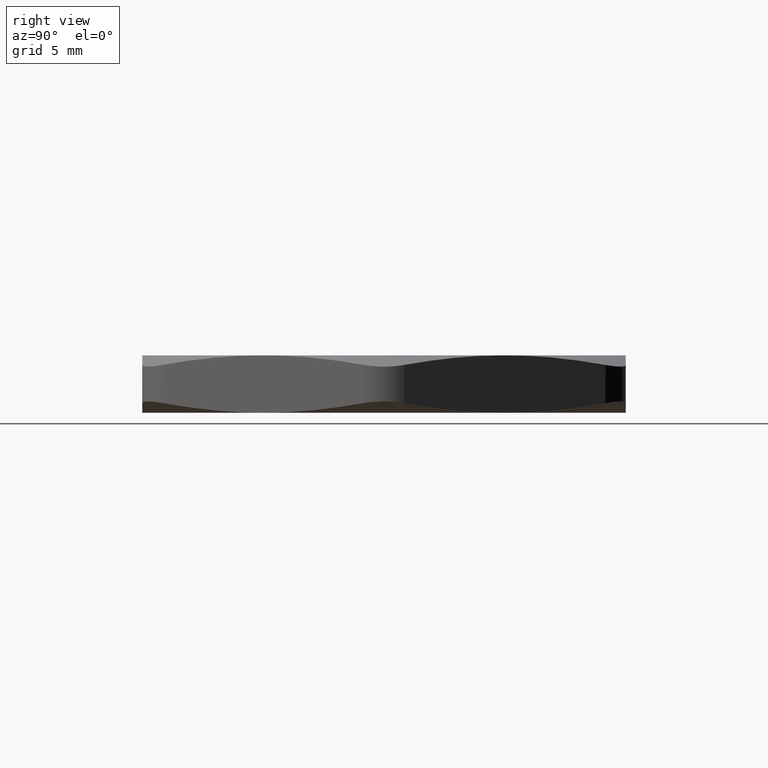
[diagram: clean part render]
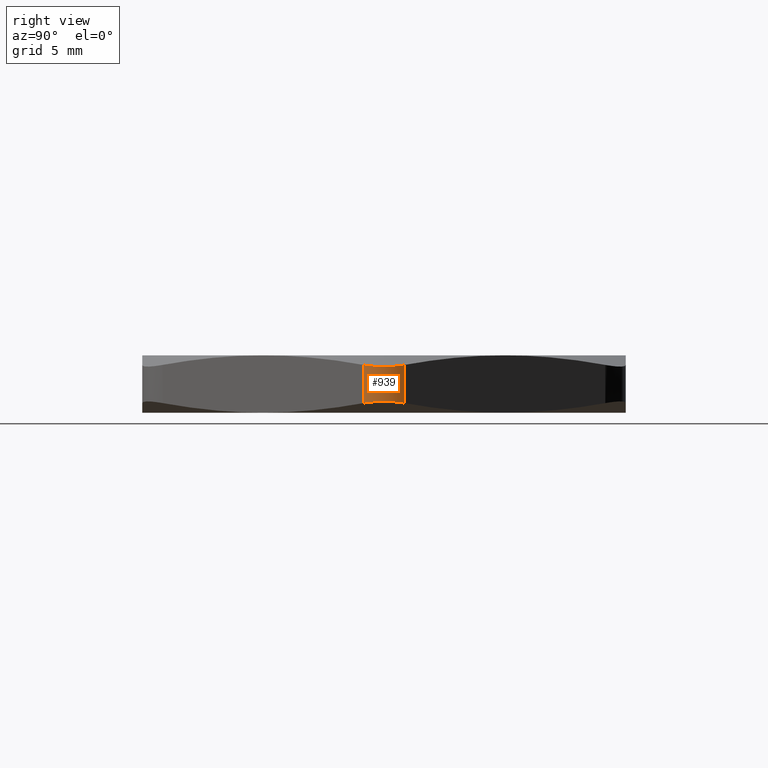
[diagram: same view with one face highlighted and labeled with its STEP entity id]
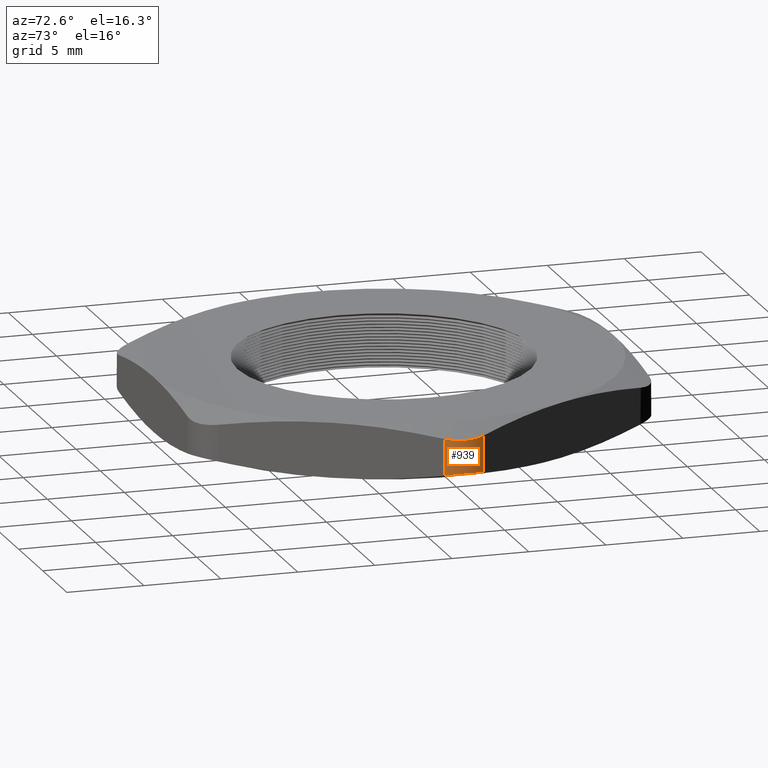
[diagram: same view with one face highlighted and labeled with its STEP entity id]
A machine part, right view. The second image highlights one B-rep face of the part: STEP entity #939.
A second angle (auxiliary view) of the same face is appended — the face is thin or edge-on in the first view.
In plain terms, the highlighted cylindrical surface (partial cylindrical patch) has radius 2.54 mm, axis along (0, 0, -1).
Its self-contained STEP definition (entity closure, byte-faithful):
#753 = EDGE_CURVE ( 'NONE', #762, #830, #2006, .T. ) ;
#762 = VERTEX_POINT ( 'NONE', #2079 ) ;
#804 = EDGE_CURVE ( 'NONE', #805, #815, #2156, .T. ) ;
#805 = VERTEX_POINT ( 'NONE', #2155 ) ;
#815 = VERTEX_POINT ( 'NONE', #2175 ) ;
#827 = VERTEX_POINT ( 'NONE', #2166 ) ;
#830 = VERTEX_POINT ( 'NONE', #2210 ) ;
#910 = EDGE_CURVE ( 'NONE', #805, #827, #2435, .T. ) ;
#916 = ORIENTED_EDGE ( 'NONE', *, *, #917, .T. ) ;
#917 = EDGE_CURVE ( 'NONE', #762, #827, #2421, .T. ) ;
#918 = ORIENTED_EDGE ( 'NONE', *, *, #910, .F. ) ;
#919 = ORIENTED_EDGE ( 'NONE', *, *, #804, .T. ) ;
#920 = ORIENTED_EDGE ( 'NONE', *, *, #921, .T. ) ;
#921 = EDGE_CURVE ( 'NONE', #815, #830, #2419, .T. ) ;
#939 = ADVANCED_FACE ( 'NONE', ( #2487 ), #2486, .T. ) ;
#940 = EDGE_LOOP ( 'NONE', ( #941, #916, #918, #919, #920 ) ) ;
#941 = ORIENTED_EDGE ( 'NONE', *, *, #753, .F. ) ;
#2006 = LINE ( 'NONE', #2055, #2048 ) ;
#2047 = DIRECTION ( 'NONE',  ( -0.0000000000000000000, -0.0000000000000000000, 1.000000000000000000 ) ) ;
#2048 = VECTOR ( 'NONE', #2047, 39.37007874015748100 ) ;
#2055 = CARTESIAN_POINT ( 'NONE',  ( 0.6524058041842769600, -0.04999999999999973900, 0.1400000000000000100 ) ) ;
#2079 = CARTESIAN_POINT ( 'NONE',  ( 0.6524058041842769600, -0.04999999999999978100, 0.02341019581624018500 ) ) ;
#2149 = CARTESIAN_POINT ( 'NONE',  ( 0.6658032638058331000, 2.971968239636659700E-023, 0.1124098683144484200 ) ) ;
#2150 = CARTESIAN_POINT ( 'NONE',  ( 0.6658032638058331000, 0.008729354266531794800, 0.1124098683144483900 ) ) ;
#2151 = CARTESIAN_POINT ( 'NONE',  ( 0.6646412070868511500, 0.01753603138064937400, 0.1127685348753485600 ) ) ;
#2152 = CARTESIAN_POINT ( 'NONE',  ( 0.6600981007092842100, 0.03442288718217039600, 0.1141799345086579300 ) ) ;
#2153 = CARTESIAN_POINT ( 'NONE',  ( 0.6567763211652364300, 0.04243004253363581700, 0.1152142598020002200 ) ) ;
#2154 = CARTESIAN_POINT ( 'NONE',  ( 0.6524058041842770700, 0.05000000000000018300, 0.1165898041837598000 ) ) ;
#2155 = CARTESIAN_POINT ( 'NONE',  ( 0.6524058041842770700, 0.05000000000000018300, 0.1165898041837598000 ) ) ;
#2156 = B_SPLINE_CURVE_WITH_KNOTS ( 'NONE', 3,
 ( #2154, #2153, #2152, #2151, #2150, #2149 ),
 .UNSPECIFIED., .F., .F.,
 ( 4, 2, 4 ),
 ( 2.305404944998015200E-007, 0.0006651312382067230200, 0.001330031935918946300 ),
 .UNSPECIFIED. ) ;
#2166 = CARTESIAN_POINT ( 'NONE',  ( 0.6524058041842770700, 0.05000000000000018300, 0.02341019581624020900 ) ) ;
#2175 = CARTESIAN_POINT ( 'NONE',  ( 0.6658032638058331000, 2.971968239636659700E-023, 0.1124098683144484200 ) ) ;
#2210 = CARTESIAN_POINT ( 'NONE',  ( 0.6524058041842769600, -0.04999999999999978100, 0.1165898041837598200 ) ) ;
#2409 = CARTESIAN_POINT ( 'NONE',  ( 0.6524058041842770700, 0.05000000000000018300, 0.02341019581624020900 ) ) ;
#2410 = CARTESIAN_POINT ( 'NONE',  ( 0.6567722321149901400, 0.04243712497641721800, 0.02478445324038868300 ) ) ;
#2411 = CARTESIAN_POINT ( 'NONE',  ( 0.6601323680625363900, 0.03431602804552395800, 0.02583072561450863000 ) ) ;
#2412 = CARTESIAN_POINT ( 'NONE',  ( 0.6646388698686094300, 0.01752405960092745200, 0.02723072458379011100 ) ) ;
#2413 = CARTESIAN_POINT ( 'NONE',  ( 0.6658079342437964700, 0.008666486709781838500, 0.02759157627025747600 ) ) ;
#2414 = CARTESIAN_POINT ( 'NONE',  ( 0.6657985645049072600, -0.008773935228747451600, 0.02758867817341872600 ) ) ;
#2415 = CARTESIAN_POINT ( 'NONE',  ( 0.6646340724745877200, -0.01757158286261217500, 0.02722925497086770700 ) ) ;
#2416 = CARTESIAN_POINT ( 'NONE',  ( 0.6600912482963142700, -0.03443929800591819700, 0.02581793029867506700 ) ) ;
#2417 = CARTESIAN_POINT ( 'NONE',  ( 0.6567718381048283100, -0.04243780742203575500, 0.02478432923252720000 ) ) ;
#2418 = CARTESIAN_POINT ( 'NONE',  ( 0.6524058041842769600, -0.04999999999999978100, 0.02341019581624018500 ) ) ;
#2419 = B_SPLINE_CURVE_WITH_KNOTS ( 'NONE', 3,
 ( #2465, #2464, #2463, #2462, #2461, #2460 ),
 .UNSPECIFIED., .F., .F.,
 ( 4, 2, 4 ),
 ( 0.001330031935918946300, 0.001993568589054178100, 0.002657105242189409500 ),
 .UNSPECIFIED. ) ;
#2421 = B_SPLINE_CURVE_WITH_KNOTS ( 'NONE', 3,
 ( #2418, #2417, #2416, #2415, #2414, #2413, #2412, #2411, #2410, #2409 ),
 .UNSPECIFIED., .F., .F.,
 ( 4, 2, 2, 2, 4 ),
 ( 2.305404944963151100E-007, 0.0006644492159182240600, 0.001328667891341951800, 0.001992886566765679700, 0.002657105242189407300 ),
 .UNSPECIFIED. ) ;
#2432 = DIRECTION ( 'NONE',  ( 0.0000000000000000000, 0.0000000000000000000, -1.000000000000000000 ) ) ;
#2433 = VECTOR ( 'NONE', #2432, 39.37007874015748100 ) ;
#2434 = CARTESIAN_POINT ( 'NONE',  ( 0.6524058041842770700, 0.05000000000000021100, 0.1400000000000000100 ) ) ;
#2435 = LINE ( 'NONE', #2434, #2433 ) ;
#2460 = CARTESIAN_POINT ( 'NONE',  ( 0.6524058041842769600, -0.04999999999999978100, 0.1165898041837598200 ) ) ;
#2461 = CARTESIAN_POINT ( 'NONE',  ( 0.6567677486500108600, -0.04244489056555485200, 0.1152169578524156900 ) ) ;
#2462 = CARTESIAN_POINT ( 'NONE',  ( 0.6601255221174168200, -0.03433255182156780300, 0.1141714074291651200 ) ) ;
#2463 = CARTESIAN_POINT ( 'NONE',  ( 0.6646318271027101800, -0.01755925978659045300, 0.1127714570868929200 ) ) ;
#2464 = CARTESIAN_POINT ( 'NONE',  ( 0.6658032638058332100, -0.008711445985808266600, 0.1124098683144484200 ) ) ;
#2465 = CARTESIAN_POINT ( 'NONE',  ( 0.6658032638058331000, 2.971968239636659700E-023, 0.1124098683144484200 ) ) ;
#2471 = DIRECTION ( 'NONE',  ( -1.000000000000000000, 0.0000000000000000000, 0.0000000000000000000 ) ) ;
#2472 = DIRECTION ( 'NONE',  ( 0.0000000000000000000, 0.0000000000000000000, -1.000000000000000000 ) ) ;
#2473 = CARTESIAN_POINT ( 'NONE',  ( 0.5658032638058331200, 2.731847993664263200E-016, 0.1400000000000000100 ) ) ;
#2474 = AXIS2_PLACEMENT_3D ( 'NONE', #2473, #2472, #2471 ) ;
#2486 = CYLINDRICAL_SURFACE ( 'NONE', #2474, 0.1000000000000000200 ) ;
#2487 = FACE_OUTER_BOUND ( 'NONE', #940, .T. ) ;